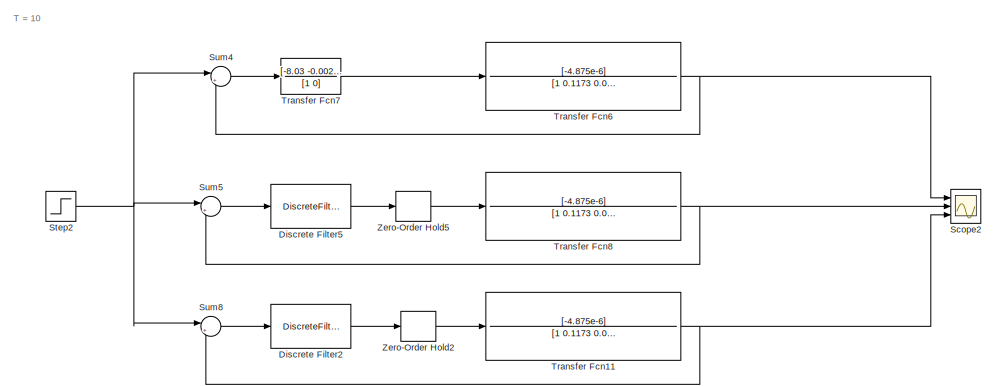
[diagram: root canvas - part 1/2, top right region]
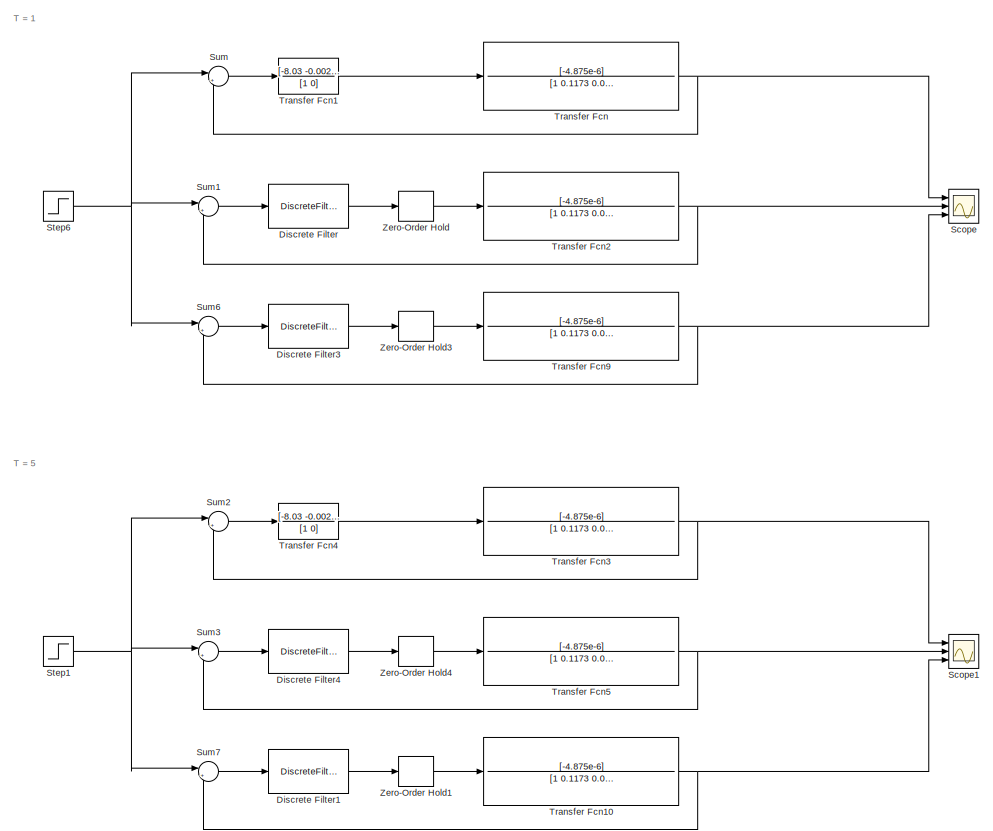
[diagram: root canvas - part 2/2, left side, full height]
MODEL slx_80a610794be7
KIND model
CONFIG AbsTol = auto
CONFIG EnableMultiTasking = off
CONFIG FixedStep = auto
CONFIG MaxStep = auto
CONFIG MinStep = auto
CONFIG RelTol = 1e-3
CONFIG SampleTimeConstraint = Unconstrained
CONFIG SolverName = VariableStepAuto
CONFIG StartTime = 0.0
CONFIG StopTime = 800
BLOCK [DiscreteFilter] Discrete Filter
  Denominator = [1 -1]
  InputPortMap = u0
  Numerator = -8.03019*[1 -0.9997]
  Ports = [1, 1]
  SampleTime = 1
BLOCK [DiscreteFilter] Discrete Filter1
  Denominator = 10000*[1 -1]
  InputPortMap = u0
  Numerator = [-80351 80249]
  Ports = [1, 1]
  SampleTime = 5
BLOCK [DiscreteFilter] Discrete Filter2
  Denominator = 5000*[1 -1]
  InputPortMap = u0
  Numerator = [-40201 40099]
  Ports = [1, 1]
  SampleTime = 10
BLOCK [DiscreteFilter] Discrete Filter3
  Denominator = 50000*[1 -1]
  InputPortMap = u0
  Numerator = [-401551 401449]
  Ports = [1, 1]
  SampleTime = 1
BLOCK [DiscreteFilter] Discrete Filter4
  Denominator = [1 -1]
  InputPortMap = u0
  Numerator = -8.035099*[1 -0.9987]
  Ports = [1, 1]
  SampleTime = 5
BLOCK [DiscreteFilter] Discrete Filter5
  Denominator = [1 -1]
  InputPortMap = u0
  Numerator = -8.040199*[1 -0.9974]
  Ports = [1, 1]
  SampleTime = 10
BLOCK [Scope] Scope
  Floating = off
  NumInputPorts = 3
  Ports = [3]
  ScopeSpecificationString = Simulink.scopes.TimeScopeBlockCfg('CurrentConfiguration', extmgr.ConfigurationSet(extmgr.Configuration('Core','General UI',true),extmgr.Configuration('Core','Source UI',true),extmgr.Configuration('Sources','WiredSimulink',true),extmgr.Configuration('Visuals','Time Domain',true,'SerializedDisplays',{struct('MinYLimReal','-0.14955','MaxYLimReal','1.34596','YLabelReal','','MinYLimMag','0.00000','MaxY...<+1347ch>
BLOCK [Scope] Scope1
  Floating = off
  NumInputPorts = 3
  Ports = [3]
  ScopeSpecificationString = Simulink.scopes.TimeScopeBlockCfg('CurrentConfiguration', extmgr.ConfigurationSet(extmgr.Configuration('Core','General UI',true),extmgr.Configuration('Core','Source UI',true),extmgr.Configuration('Sources','WiredSimulink',true,'DataLoggingVariableName','ScopeData1'),extmgr.Configuration('Visuals','Time Domain',true,'SerializedDisplays',{struct('MinYLimReal','-0.1515','MaxYLimReal','1.3635','YLabel...<+1380ch>
BLOCK [Scope] Scope2
  Floating = off
  NumInputPorts = 3
  Ports = [3]
  ScopeSpecificationString = Simulink.scopes.TimeScopeBlockCfg('CurrentConfiguration', extmgr.ConfigurationSet(extmgr.Configuration('Core','General UI',true),extmgr.Configuration('Core','Source UI',true),extmgr.Configuration('Sources','WiredSimulink',true,'DataLoggingVariableName','ScopeData2'),extmgr.Configuration('Visuals','Time Domain',true,'SerializedDisplays',{struct('MinYLimReal','-0.15461','MaxYLimReal','1.39149','YLab...<+1386ch>
BLOCK [Step] Step1
  SampleTime = 0
  Time = 0
BLOCK [Step] Step2
  SampleTime = 0
  Time = 0
BLOCK [Step] Step6
  SampleTime = 0
  Time = 0
BLOCK [Sum] Sum
  Inputs = |+-
  Ports = [2, 1]
BLOCK [Sum] Sum1
  Inputs = |+-
  Ports = [2, 1]
BLOCK [Sum] Sum2
  Inputs = |+-
  Ports = [2, 1]
BLOCK [Sum] Sum3
  Inputs = |+-
  Ports = [2, 1]
BLOCK [Sum] Sum4
  Inputs = |+-
  Ports = [2, 1]
BLOCK [Sum] Sum5
  Inputs = |+-
  Ports = [2, 1]
BLOCK [Sum] Sum6
  Inputs = |+-
  Ports = [2, 1]
BLOCK [Sum] Sum7
  Inputs = |+-
  Ports = [2, 1]
BLOCK [Sum] Sum8
  Inputs = |+-
  Ports = [2, 1]
BLOCK [TransferFcn] Transfer Fcn
  Denominator = [1 0.1173 0.002308 0]
  Numerator = [-4.875e-6]
BLOCK [TransferFcn] Transfer Fcn1
  Denominator = [1 0]
  Numerator = [-8.03 -0.00204]
BLOCK [TransferFcn] Transfer Fcn10
  Denominator = [1 0.1173 0.002308 0]
  Numerator = [-4.875e-6]
BLOCK [TransferFcn] Transfer Fcn11
  Denominator = [1 0.1173 0.002308 0]
  Numerator = [-4.875e-6]
BLOCK [TransferFcn] Transfer Fcn2
  Denominator = [1 0.1173 0.002308 0]
  Numerator = [-4.875e-6]
BLOCK [TransferFcn] Transfer Fcn3
  Denominator = [1 0.1173 0.002308 0]
  Numerator = [-4.875e-6]
BLOCK [TransferFcn] Transfer Fcn4
  Denominator = [1 0]
  Numerator = [-8.03 -0.00204]
BLOCK [TransferFcn] Transfer Fcn5
  Denominator = [1 0.1173 0.002308 0]
  Numerator = [-4.875e-6]
BLOCK [TransferFcn] Transfer Fcn6
  Denominator = [1 0.1173 0.002308 0]
  Numerator = [-4.875e-6]
BLOCK [TransferFcn] Transfer Fcn7
  Denominator = [1 0]
  Numerator = [-8.03 -0.00204]
BLOCK [TransferFcn] Transfer Fcn8
  Denominator = [1 0.1173 0.002308 0]
  Numerator = [-4.875e-6]
BLOCK [TransferFcn] Transfer Fcn9
  Denominator = [1 0.1173 0.002308 0]
  Numerator = [-4.875e-6]
BLOCK [ZeroOrderHold] Zero-Order Hold
BLOCK [ZeroOrderHold] Zero-Order Hold1
  SampleTime = 5
BLOCK [ZeroOrderHold] Zero-Order Hold2
  SampleTime = 10
BLOCK [ZeroOrderHold] Zero-Order Hold3
BLOCK [ZeroOrderHold] Zero-Order Hold4
  SampleTime = 5
BLOCK [ZeroOrderHold] Zero-Order Hold5
  SampleTime = 10
ANNOTATION (root): T = 1
ANNOTATION (root): T = 10
ANNOTATION (root): T = 5
LINE Discrete Filter1:1 -> Zero-Order Hold1:1
LINE Discrete Filter2:1 -> Zero-Order Hold2:1
LINE Discrete Filter3:1 -> Zero-Order Hold3:1
LINE Discrete Filter4:1 -> Zero-Order Hold4:1
LINE Discrete Filter5:1 -> Zero-Order Hold5:1
LINE Discrete Filter:1 -> Zero-Order Hold:1
NET Step1:1 -> Sum2:1, Sum3:1, Sum7:1
NET Step2:1 -> Sum4:1, Sum5:1, Sum8:1
NET Step6:1 -> Sum1:1, Sum6:1, Sum:1
LINE Sum1:1 -> Discrete Filter:1
LINE Sum2:1 -> Transfer Fcn4:1
LINE Sum3:1 -> Discrete Filter4:1
LINE Sum4:1 -> Transfer Fcn7:1
LINE Sum5:1 -> Discrete Filter5:1
LINE Sum6:1 -> Discrete Filter3:1
LINE Sum7:1 -> Discrete Filter1:1
LINE Sum8:1 -> Discrete Filter2:1
LINE Sum:1 -> Transfer Fcn1:1
NET Transfer Fcn10:1 -> Scope1:3, Sum7:2
NET Transfer Fcn11:1 -> Scope2:3, Sum8:2
LINE Transfer Fcn1:1 -> Transfer Fcn:1
NET Transfer Fcn2:1 -> Scope:2, Sum1:2
NET Transfer Fcn3:1 -> Scope1:1, Sum2:2
LINE Transfer Fcn4:1 -> Transfer Fcn3:1
NET Transfer Fcn5:1 -> Scope1:2, Sum3:2
NET Transfer Fcn6:1 -> Scope2:1, Sum4:2
LINE Transfer Fcn7:1 -> Transfer Fcn6:1
NET Transfer Fcn8:1 -> Scope2:2, Sum5:2
NET Transfer Fcn9:1 -> Scope:3, Sum6:2
NET Transfer Fcn:1 -> Scope:1, Sum:2
LINE Zero-Order Hold1:1 -> Transfer Fcn10:1
LINE Zero-Order Hold2:1 -> Transfer Fcn11:1
LINE Zero-Order Hold3:1 -> Transfer Fcn9:1
LINE Zero-Order Hold4:1 -> Transfer Fcn5:1
LINE Zero-Order Hold5:1 -> Transfer Fcn8:1
LINE Zero-Order Hold:1 -> Transfer Fcn2:1
note: NET lines group one-source signal fan-out (src -> all destinations, sorted); 1:1 wires keep LINE
